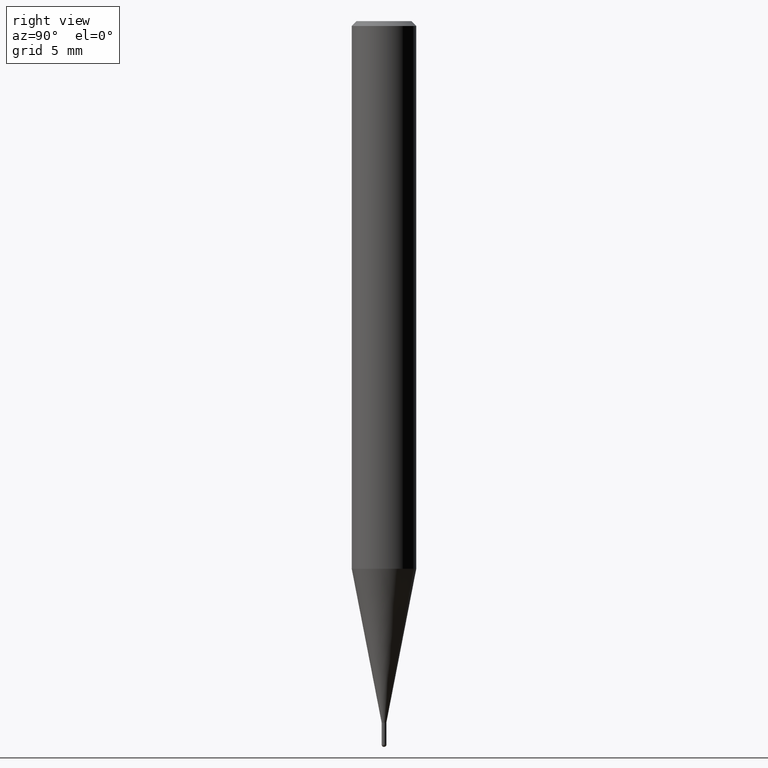
[diagram: clean part render]
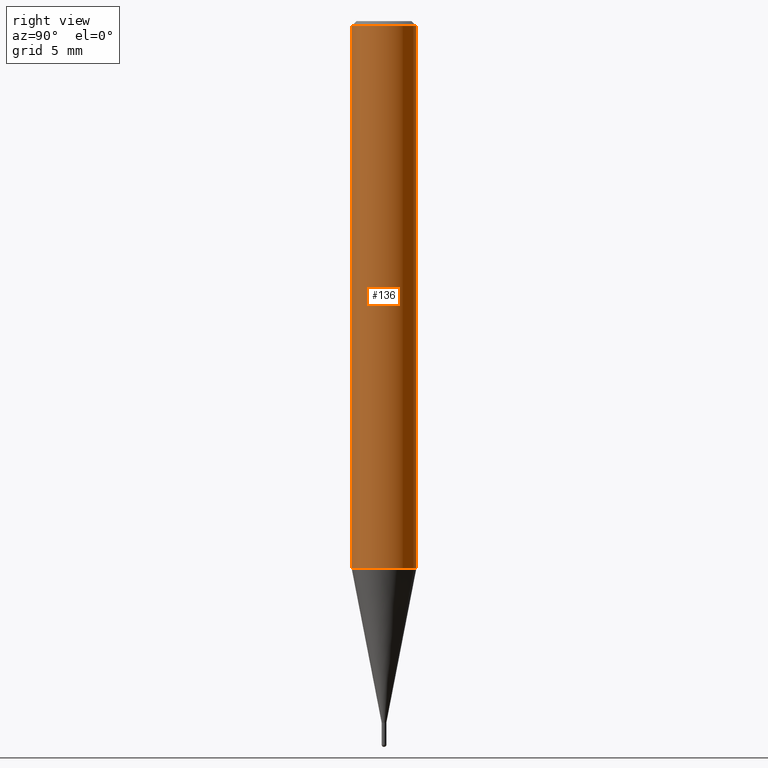
[diagram: same view with one face highlighted and labeled with its STEP entity id]
A machine part, right view. The second image highlights one B-rep face of the part: STEP entity #136.
In plain terms, the highlighted cylindrical surface (edge-blend (fillet) strip) has radius 2 mm, axis along (-0, -0, 1).
Its self-contained STEP definition (entity closure, byte-faithful):
#94=VERTEX_POINT('',#235);
#102=EDGE_CURVE('',#94,#142,#243,.T.);
#114=EDGE_CURVE('',#142,#130,#255,.T.);
#130=VERTEX_POINT('',#272);
#136=ADVANCED_FACE('',(#278),#279,.T.);
#142=VERTEX_POINT('',#286);
#182=EDGE_CURVE('',#194,#130,#334,.T.);
#194=VERTEX_POINT('',#348);
#202=EDGE_CURVE('',#194,#94,#358,.T.);
#235=CARTESIAN_POINT('',(0.0,2.0,-33.957));
#243=CIRCLE('',#396,2.0);
#255=LINE('',#413,#414);
#272=CARTESIAN_POINT('',(2.44921270764475E-016,-2.0,-0.299999999999997));
#278=FACE_OUTER_BOUND('',#444,.T.);
#279=CYLINDRICAL_SURFACE('',#445,2.0);
#286=CARTESIAN_POINT('',(2.44921270764475E-016,-2.0,-33.957));
#334=CIRCLE('',#514,2.0);
#348=CARTESIAN_POINT('',(0.0,2.0,-0.299999999999997));
#358=LINE('',#539,#540);
#396=AXIS2_PLACEMENT_3D('',#565,#566,#567);
#413=CARTESIAN_POINT('',(2.44921270764475E-016,-2.0,-17.1285));
#414=VECTOR('',#575,1.0);
#444=EDGE_LOOP('',(#600,#601,#602,#603));
#445=AXIS2_PLACEMENT_3D('',#604,#605,#606);
#514=AXIS2_PLACEMENT_3D('',#682,#683,#684);
#539=CARTESIAN_POINT('',(-2.44921270764475E-016,2.0,-17.1285));
#540=VECTOR('',#719,1.0);
#565=CARTESIAN_POINT('',(0.0,0.0,-33.957));
#566=DIRECTION('',(0.0,0.0,-1.0));
#567=DIRECTION('',(0.0,1.0,0.0));
#575=DIRECTION('',(-0.0,-0.0,1.0));
#600=ORIENTED_EDGE('',*,*,#202,.F.);
#601=ORIENTED_EDGE('',*,*,#182,.T.);
#602=ORIENTED_EDGE('',*,*,#114,.F.);
#603=ORIENTED_EDGE('',*,*,#102,.F.);
#604=CARTESIAN_POINT('',(0.0,0.0,-17.1285));
#605=DIRECTION('',(-0.0,-0.0,1.0));
#606=DIRECTION('',(0.0,1.0,0.0));
#682=CARTESIAN_POINT('',(0.0,0.0,-0.299999999999997));
#683=DIRECTION('',(0.0,0.0,-1.0));
#684=DIRECTION('',(0.0,1.0,0.0));
#719=DIRECTION('',(0.0,0.0,-1.0));